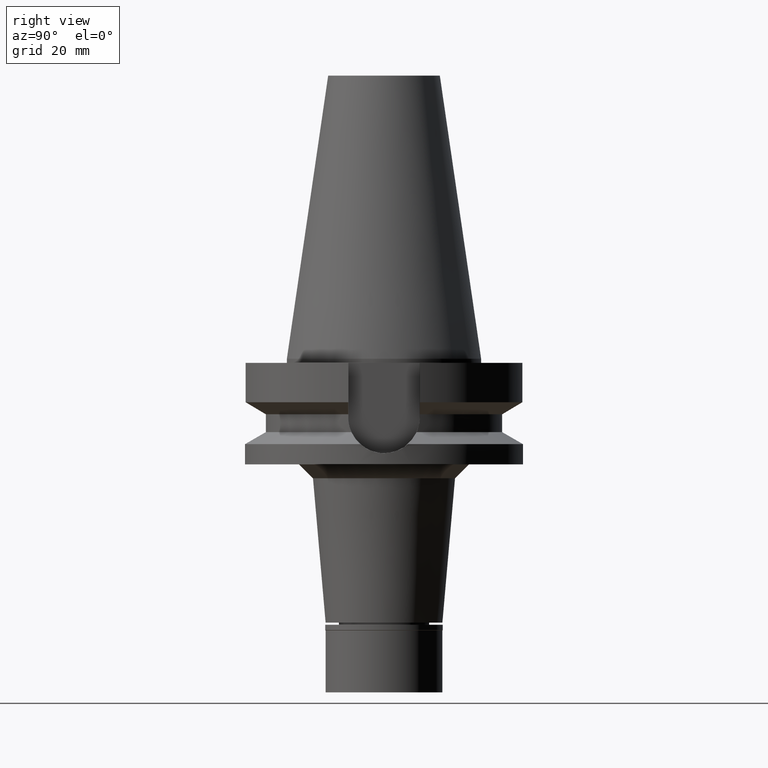
[diagram: clean part render]
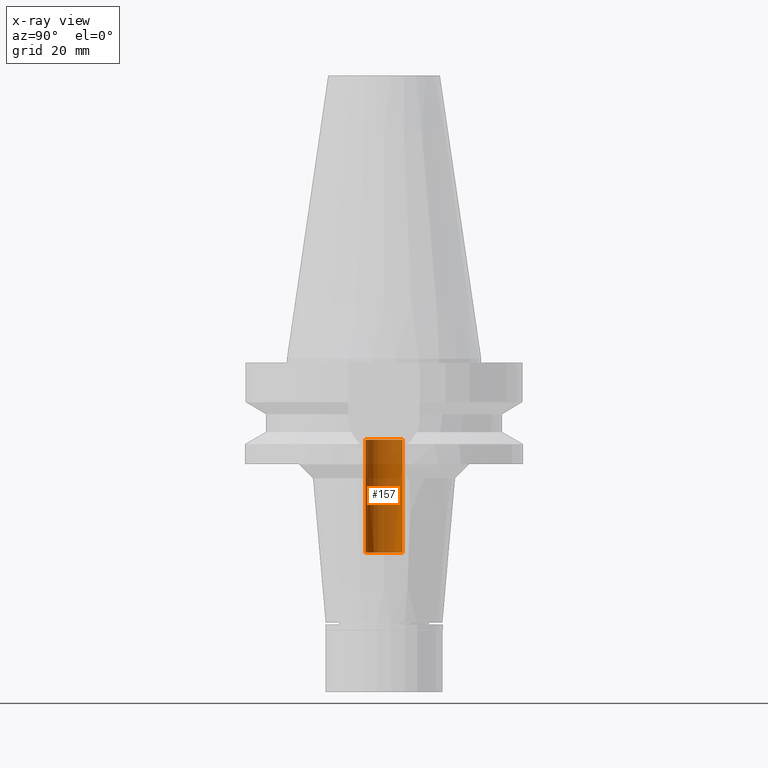
[diagram: x-ray — body ghosted, one internal face saturated and labeled with its STEP entity id]
A machine part, right view, then the same camera in x-ray: the body is ghosted and one INTERNAL B-rep face — a face not visible from any outside direction — is saturated and labeled: STEP entity #157.
In plain terms, the highlighted cylindrical surface (edge-blend (fillet) strip) has radius 6.65 mm, axis along (0, 0, -1).
Its self-contained STEP definition (entity closure, byte-faithful):
#57 = ORIENTED_EDGE ( 'NONE', *, *, #1258, .T. ) ;
#72 = CARTESIAN_POINT ( 'NONE',  ( 0.0000000000000000000, 6.649999999999999467, -69.79999999999999716 ) ) ;
#103 = EDGE_CURVE ( 'NONE', #730, #2839, #154, .T. ) ;
#109 = VERTEX_POINT ( 'NONE', #2176 ) ;
#148 = CARTESIAN_POINT ( 'NONE',  ( 0.0000000000000000000, -6.649999999999999467, -29.19999999999999929 ) ) ;
#154 = LINE ( 'NONE', #188, #356 ) ;
#157 = ADVANCED_FACE ( 'NONE', ( #972 ), #1201, .F. ) ;
#188 = CARTESIAN_POINT ( 'NONE',  ( 0.0000000000000000000, 6.649999999999999467, -69.79999999999999716 ) ) ;
#299 = CIRCLE ( 'NONE', #2813, 6.649999999999999467 ) ;
#309 = DIRECTION ( 'NONE',  ( 0.0000000000000000000, 0.0000000000000000000, 1.000000000000000000 ) ) ;
#356 = VECTOR ( 'NONE', #2603, 1000.000000000000000 ) ;
#370 = DIRECTION ( 'NONE',  ( 0.0000000000000000000, 1.000000000000000000, 0.0000000000000000000 ) ) ;
#420 = EDGE_CURVE ( 'NONE', #2839, #881, #3166, .T. ) ;
#730 = VERTEX_POINT ( 'NONE', #72 ) ;
#852 = EDGE_LOOP ( 'NONE', ( #1491, #2272, #57, #2393 ) ) ;
#872 = AXIS2_PLACEMENT_3D ( 'NONE', #2163, #1450, #3088 ) ;
#881 = VERTEX_POINT ( 'NONE', #148 ) ;
#972 = FACE_OUTER_BOUND ( 'NONE', #852, .T. ) ;
#1201 = CYLINDRICAL_SURFACE ( 'NONE', #872, 6.649999999999999467 ) ;
#1258 = EDGE_CURVE ( 'NONE', #109, #730, #299, .T. ) ;
#1307 = DIRECTION ( 'NONE',  ( 0.0000000000000000000, 0.0000000000000000000, -1.000000000000000000 ) ) ;
#1344 = AXIS2_PLACEMENT_3D ( 'NONE', #1836, #309, #370 ) ;
#1450 = DIRECTION ( 'NONE',  ( 0.0000000000000000000, 0.0000000000000000000, -1.000000000000000000 ) ) ;
#1491 = ORIENTED_EDGE ( 'NONE', *, *, #420, .T. ) ;
#1497 = CARTESIAN_POINT ( 'NONE',  ( 0.0000000000000000000, 2.602558145207999832E-14, -69.79999999999999716 ) ) ;
#1836 = CARTESIAN_POINT ( 'NONE',  ( 0.0000000000000000000, 2.602558145207999832E-14, -29.19999999999999929 ) ) ;
#1839 = VECTOR ( 'NONE', #3165, 1000.000000000000000 ) ;
#1946 = CARTESIAN_POINT ( 'NONE',  ( 0.0000000000000000000, -6.649999999999999467, -69.79999999999999716 ) ) ;
#2163 = CARTESIAN_POINT ( 'NONE',  ( 0.0000000000000000000, 2.602558145207999832E-14, 112.5150000000000006 ) ) ;
#2176 = CARTESIAN_POINT ( 'NONE',  ( 0.0000000000000000000, -6.649999999999999467, -69.79999999999999716 ) ) ;
#2272 = ORIENTED_EDGE ( 'NONE', *, *, #2553, .F. ) ;
#2393 = ORIENTED_EDGE ( 'NONE', *, *, #103, .T. ) ;
#2477 = DIRECTION ( 'NONE',  ( 0.0000000000000000000, -1.000000000000000000, 0.0000000000000000000 ) ) ;
#2553 = EDGE_CURVE ( 'NONE', #109, #881, #3095, .T. ) ;
#2603 = DIRECTION ( 'NONE',  ( 0.0000000000000000000, 0.0000000000000000000, 1.000000000000000000 ) ) ;
#2813 = AXIS2_PLACEMENT_3D ( 'NONE', #1497, #1307, #2477 ) ;
#2839 = VERTEX_POINT ( 'NONE', #3131 ) ;
#3088 = DIRECTION ( 'NONE',  ( 0.0000000000000000000, -1.000000000000000000, 0.0000000000000000000 ) ) ;
#3095 = LINE ( 'NONE', #1946, #1839 ) ;
#3131 = CARTESIAN_POINT ( 'NONE',  ( 0.0000000000000000000, 6.649999999999999467, -29.19999999999999929 ) ) ;
#3165 = DIRECTION ( 'NONE',  ( 0.0000000000000000000, 0.0000000000000000000, 1.000000000000000000 ) ) ;
#3166 = CIRCLE ( 'NONE', #1344, 6.649999999999999467 ) ;